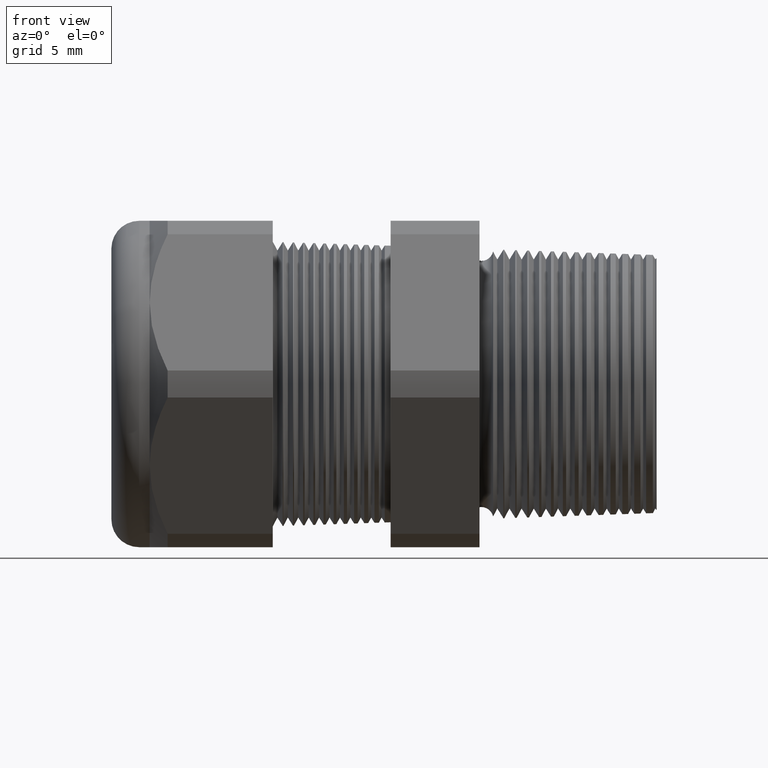
[diagram: clean part render]
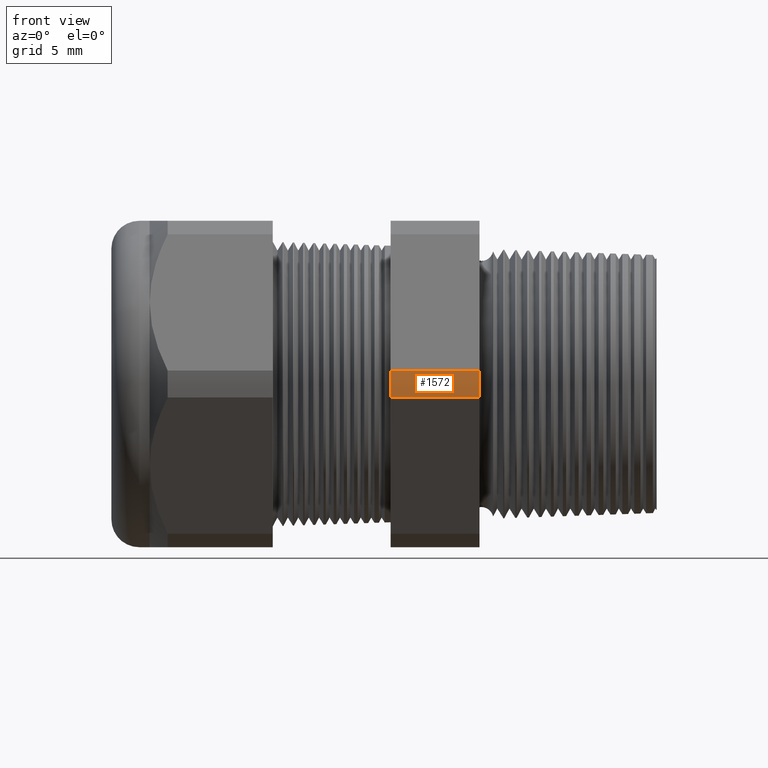
[diagram: same view with one face highlighted and labeled with its STEP entity id]
A machine part, front view. The second image highlights one B-rep face of the part: STEP entity #1572.
In plain terms, the highlighted cylindrical surface (partial cylindrical patch) has radius 13.2512 mm, axis along (-1, 0, 0).
Its self-contained STEP definition (entity closure, byte-faithful):
#1380 = VERTEX_POINT ( 'NONE', #4054 ) ;
#1382 = EDGE_CURVE ( 'NONE', #1380, #1383, #4053, .T. ) ;
#1383 = VERTEX_POINT ( 'NONE', #4048 ) ;
#1494 = EDGE_LOOP ( 'NONE', ( #1495, #1496, #1497, #1500 ) ) ;
#1495 = ORIENTED_EDGE ( 'NONE', *, *, #1569, .F. ) ;
#1496 = ORIENTED_EDGE ( 'NONE', *, *, #1382, .F. ) ;
#1497 = ORIENTED_EDGE ( 'NONE', *, *, #1498, .T. ) ;
#1498 = EDGE_CURVE ( 'NONE', #1380, #1499, #4273, .T. ) ;
#1499 = VERTEX_POINT ( 'NONE', #4266 ) ;
#1500 = ORIENTED_EDGE ( 'NONE', *, *, #1501, .F. ) ;
#1501 = EDGE_CURVE ( 'NONE', #1515, #1499, #4265, .T. ) ;
#1515 = VERTEX_POINT ( 'NONE', #4304 ) ;
#1569 = EDGE_CURVE ( 'NONE', #1383, #1515, #4408, .T. ) ;
#1572 = ADVANCED_FACE ( 'NONE', ( #4400 ), #4398, .T. ) ;
#4048 = CARTESIAN_POINT ( 'NONE',  ( -0.3100000000000000000, -0.5202473208008777700, -0.03890520787129495000 ) ) ;
#4049 = DIRECTION ( 'NONE',  ( 0.0000000000000000000, 0.0000000000000000000, -1.000000000000000000 ) ) ;
#4050 = DIRECTION ( 'NONE',  ( 1.000000000000000000, 0.0000000000000000000, 0.0000000000000000000 ) ) ;
#4051 = CARTESIAN_POINT ( 'NONE',  ( -0.3100000000000000000, 0.0000000000000000000, 0.0000000000000000000 ) ) ;
#4052 = AXIS2_PLACEMENT_3D ( 'NONE', #4051, #4050, #4049 ) ;
#4053 = CIRCLE ( 'NONE', #4052, 0.5217000000000000500 ) ;
#4054 = CARTESIAN_POINT ( 'NONE',  ( -0.3100000000000000000, -0.5202473208008777700, 0.03890520787129464500 ) ) ;
#4261 = DIRECTION ( 'NONE',  ( 0.0000000000000000000, 0.0000000000000000000, 1.000000000000000000 ) ) ;
#4262 = DIRECTION ( 'NONE',  ( -1.000000000000000000, 0.0000000000000000000, 0.0000000000000000000 ) ) ;
#4263 = CARTESIAN_POINT ( 'NONE',  ( -0.5659055118110235500, 0.0000000000000000000, 0.0000000000000000000 ) ) ;
#4264 = AXIS2_PLACEMENT_3D ( 'NONE', #4263, #4262, #4261 ) ;
#4265 = CIRCLE ( 'NONE', #4264, 0.5217000000000000500 ) ;
#4266 = CARTESIAN_POINT ( 'NONE',  ( -0.5659055118110235500, -0.5202473208008777700, 0.03890520787129464500 ) ) ;
#4267 = DIRECTION ( 'NONE',  ( -1.000000000000000000, 0.0000000000000000000, 0.0000000000000000000 ) ) ;
#4268 = VECTOR ( 'NONE', #4267, 39.37007874015748100 ) ;
#4269 = CARTESIAN_POINT ( 'NONE',  ( 0.2000000000000000400, -0.5202473208008777700, 0.03890520787129464500 ) ) ;
#4273 = LINE ( 'NONE', #4269, #4268 ) ;
#4304 = CARTESIAN_POINT ( 'NONE',  ( -0.5659055118110235500, -0.5202473208008777700, -0.03890520787129495000 ) ) ;
#4394 = DIRECTION ( 'NONE',  ( 0.0000000000000000000, 0.0000000000000000000, 1.000000000000000000 ) ) ;
#4395 = DIRECTION ( 'NONE',  ( -1.000000000000000000, 0.0000000000000000000, 0.0000000000000000000 ) ) ;
#4396 = CARTESIAN_POINT ( 'NONE',  ( 0.2000000000000000400, 0.0000000000000000000, 0.0000000000000000000 ) ) ;
#4397 = AXIS2_PLACEMENT_3D ( 'NONE', #4396, #4395, #4394 ) ;
#4398 = CYLINDRICAL_SURFACE ( 'NONE', #4397, 0.5217000000000000500 ) ;
#4400 = FACE_OUTER_BOUND ( 'NONE', #1494, .T. ) ;
#4405 = DIRECTION ( 'NONE',  ( -1.000000000000000000, 0.0000000000000000000, 0.0000000000000000000 ) ) ;
#4406 = VECTOR ( 'NONE', #4405, 39.37007874015748100 ) ;
#4407 = CARTESIAN_POINT ( 'NONE',  ( 0.2000000000000000400, -0.5202473208008777700, -0.03890520787129495000 ) ) ;
#4408 = LINE ( 'NONE', #4407, #4406 ) ;